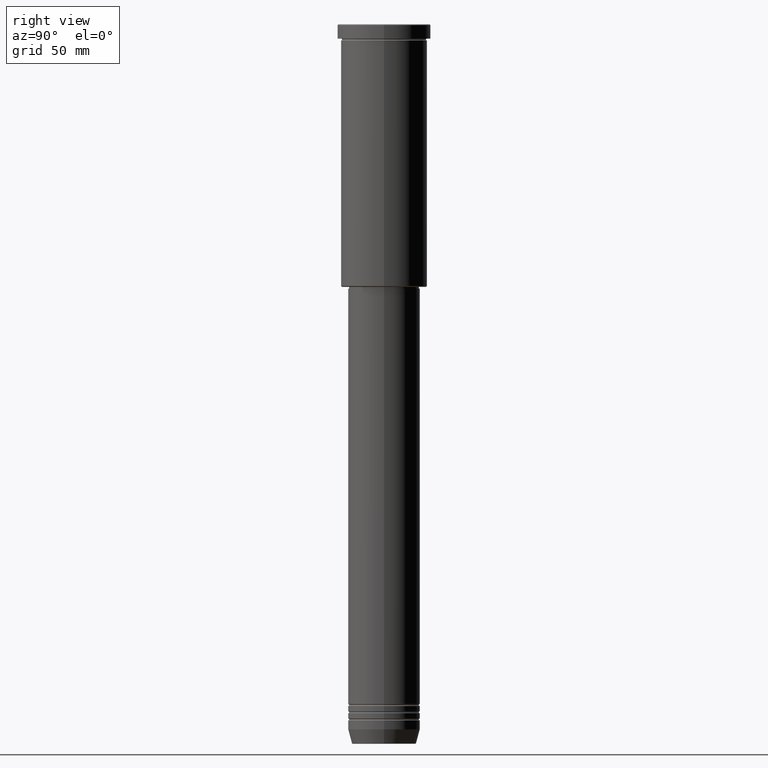
[diagram: clean part render]
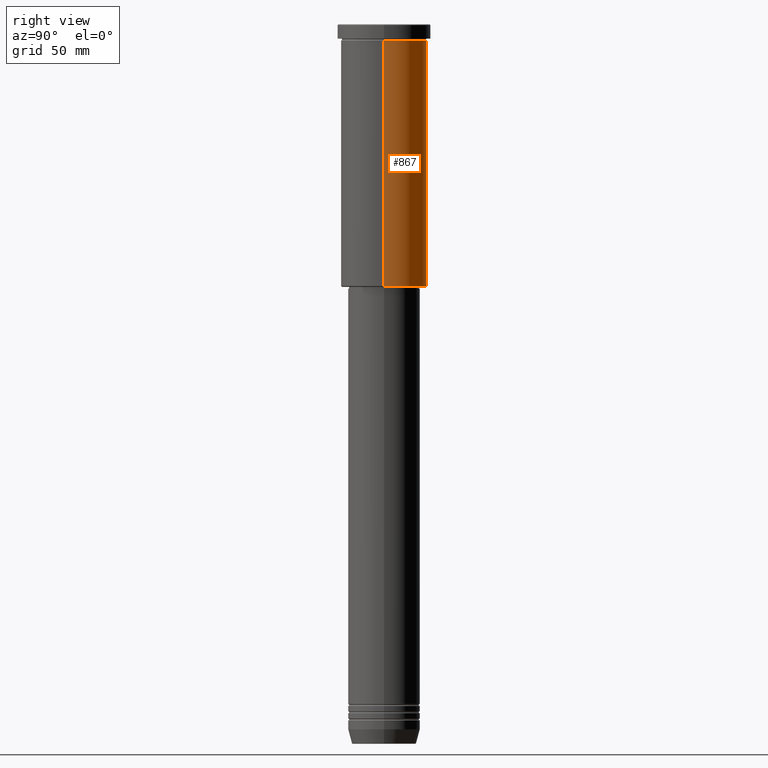
[diagram: same view with one face highlighted and labeled with its STEP entity id]
A machine part, right view. The second image highlights one B-rep face of the part: STEP entity #867.
In plain terms, the highlighted cylindrical surface (partial cylindrical patch) has radius 24 mm, axis along (-0, -0, 1).
Its self-contained STEP definition (entity closure, byte-faithful):
#3 = EDGE_CURVE ( 'NONE', #983, #100, #613, .T. ) ;
#50 = AXIS2_PLACEMENT_3D ( 'NONE', #696, #621, #684 ) ;
#61 = AXIS2_PLACEMENT_3D ( 'NONE', #454, #820, #729 ) ;
#95 = DIRECTION ( 'NONE',  ( -0.000000000000000000, -0.000000000000000000, 1.000000000000000000 ) ) ;
#100 = VERTEX_POINT ( 'NONE', #135 ) ;
#102 = ORIENTED_EDGE ( 'NONE', *, *, #693, .F. ) ;
#135 = CARTESIAN_POINT ( 'NONE',  ( -24.00000000000000000, 2.939152317953647894E-15, -8.999999999999994671 ) ) ;
#149 = CARTESIAN_POINT ( 'NONE',  ( 0.000000000000000000, 0.000000000000000000, 0.000000000000000000 ) ) ;
#163 = AXIS2_PLACEMENT_3D ( 'NONE', #149, #95, #734 ) ;
#206 = VECTOR ( 'NONE', #759, 1000.000000000000000 ) ;
#221 = LINE ( 'NONE', #391, #206 ) ;
#236 = CARTESIAN_POINT ( 'NONE',  ( -24.00000000000000000, 2.939152317953647894E-15, -145.5000000000001421 ) ) ;
#278 = ORIENTED_EDGE ( 'NONE', *, *, #813, .T. ) ;
#391 = CARTESIAN_POINT ( 'NONE',  ( -24.00000000000000000, 2.939152317953647894E-15, 0.000000000000000000 ) ) ;
#454 = CARTESIAN_POINT ( 'NONE',  ( 0.000000000000000000, 0.000000000000000000, -8.999999999999994671 ) ) ;
#552 = VERTEX_POINT ( 'NONE', #236 ) ;
#556 = EDGE_CURVE ( 'NONE', #552, #100, #221, .T. ) ;
#558 = CARTESIAN_POINT ( 'NONE',  ( 24.00000000000000000, 0.000000000000000000, -8.999999999999994671 ) ) ;
#568 = CIRCLE ( 'NONE', #50, 24.00000000000000000 ) ;
#603 = CYLINDRICAL_SURFACE ( 'NONE', #163, 24.00000000000000000 ) ;
#605 = ORIENTED_EDGE ( 'NONE', *, *, #3, .F. ) ;
#613 = CIRCLE ( 'NONE', #61, 24.00000000000000000 ) ;
#621 = DIRECTION ( 'NONE',  ( -0.000000000000000000, -0.000000000000000000, 1.000000000000000000 ) ) ;
#632 = EDGE_LOOP ( 'NONE', ( #278, #924, #605, #102 ) ) ;
#684 = DIRECTION ( 'NONE',  ( -1.000000000000000000, 0.000000000000000000, 0.000000000000000000 ) ) ;
#693 = EDGE_CURVE ( 'NONE', #1164, #983, #1119, .T. ) ;
#696 = CARTESIAN_POINT ( 'NONE',  ( 0.000000000000000000, 0.000000000000000000, -145.5000000000001421 ) ) ;
#729 = DIRECTION ( 'NONE',  ( 1.000000000000000000, 0.000000000000000000, 0.000000000000000000 ) ) ;
#734 = DIRECTION ( 'NONE',  ( 1.000000000000000000, 0.000000000000000000, 0.000000000000000000 ) ) ;
#759 = DIRECTION ( 'NONE',  ( -0.000000000000000000, -0.000000000000000000, 1.000000000000000000 ) ) ;
#813 = EDGE_CURVE ( 'NONE', #1164, #552, #568, .T. ) ;
#820 = DIRECTION ( 'NONE',  ( -0.000000000000000000, -0.000000000000000000, 1.000000000000000000 ) ) ;
#867 = ADVANCED_FACE ( 'NONE', ( #971 ), #603, .T. ) ;
#872 = CARTESIAN_POINT ( 'NONE',  ( 24.00000000000000000, 0.000000000000000000, 0.000000000000000000 ) ) ;
#887 = DIRECTION ( 'NONE',  ( -0.000000000000000000, -0.000000000000000000, 1.000000000000000000 ) ) ;
#924 = ORIENTED_EDGE ( 'NONE', *, *, #556, .T. ) ;
#971 = FACE_OUTER_BOUND ( 'NONE', #632, .T. ) ;
#983 = VERTEX_POINT ( 'NONE', #558 ) ;
#1119 = LINE ( 'NONE', #872, #1169 ) ;
#1155 = CARTESIAN_POINT ( 'NONE',  ( 24.00000000000000000, 0.000000000000000000, -145.5000000000001421 ) ) ;
#1164 = VERTEX_POINT ( 'NONE', #1155 ) ;
#1169 = VECTOR ( 'NONE', #887, 1000.000000000000000 ) ;